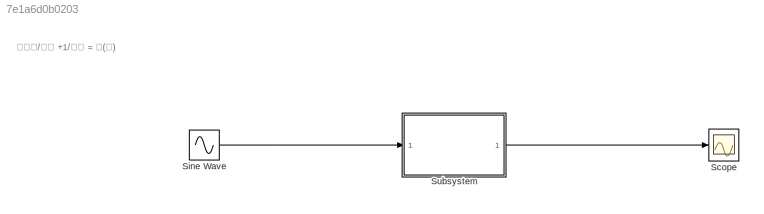
MODEL slx_7e1a6d0b0203
KIND model
CONFIG AbsTol = auto
CONFIG EnableMultiTasking = off
CONFIG FixedStep = auto
CONFIG MaxStep = auto
CONFIG MinStep = auto
CONFIG RelTol = 1e-3
CONFIG SampleTimeConstraint = Unconstrained
CONFIG Solver = VariableStepAuto
CONFIG SolverName = VariableStepAuto
CONFIG StartTime = 0.0
CONFIG StopTime = 10.0
WORKSPACE source: mxarray member
WORKSPACE C = 10
WORKSPACE R = 10
BLOCK [Scope] Scope
  Floating = off
  NumInputPorts = 1
  Ports = [1]
  ScopeSpecificationString = Simulink.scopes.TimeScopeBlockCfg('CurrentConfiguration', extmgr.ConfigurationSet(extmgr.Configuration('Core','General UI',true),extmgr.Configuration('Core','Source UI',true),extmgr.Configuration('Sources','WiredSimulink',true),extmgr.Configuration('Visuals','Time Domain',true,'SerializedDisplays',{struct('MinYLimReal','-6.22816','MaxYLimReal','6.2452','YLabelReal','','MinYLimMag','0.00000','MaxYL...<+1341ch>
BLOCK [Sin] Sine Wave
  Amplitude = 50
  Ports = [0, 1]
  SampleTime = 0
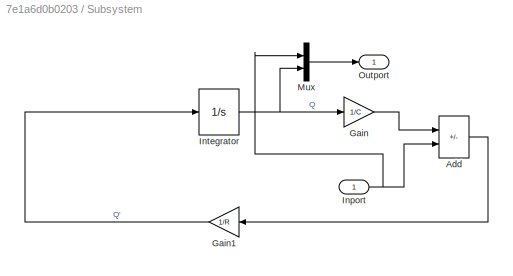
BLOCK [SubSystem] Subsystem
  Ports = [1, 1]
  RequestExecContextInheritance = off
BLOCK [Sum] Subsystem/Add
  IconShape = rectangular
  Inputs = -+
  Ports = [2, 1]
BLOCK [Gain] Subsystem/Gain
  Gain = 1/C
BLOCK [Gain] Subsystem/Gain1
  Gain = 1/R
  NameLocation = top
BLOCK [Inport] Subsystem/Inport
BLOCK [Integrator] Subsystem/Integrator
  InitialCondition = 4
  Ports = [1, 1]
BLOCK [Mux] Subsystem/Mux
  DisplayOption = bar
  Inputs = 2
  Ports = [2, 1]
BLOCK [Outport] Subsystem/Outport
ANNOTATION (root): 𝑅𝑑𝑄/𝑑𝑡 +1/𝐶𝑄 = 𝐸(𝑡)
LINE Sine Wave:1 -> Subsystem:1
LINE Subsystem/Add:1 -> Subsystem/Gain1:1
LINE Subsystem/Gain1:1 -> Subsystem/Integrator:1
LINE Subsystem/Gain:1 -> Subsystem/Add:1
NET Subsystem/Inport:1 -> Subsystem/Add:2, Subsystem/Mux:1
NET Subsystem/Integrator:1 -> Subsystem/Gain:1, Subsystem/Mux:2
LINE Subsystem/Mux:1 -> Subsystem/Outport:1
LINE Subsystem:1 -> Scope:1
note: NET lines group one-source signal fan-out (src -> all destinations, sorted); 1:1 wires keep LINE
